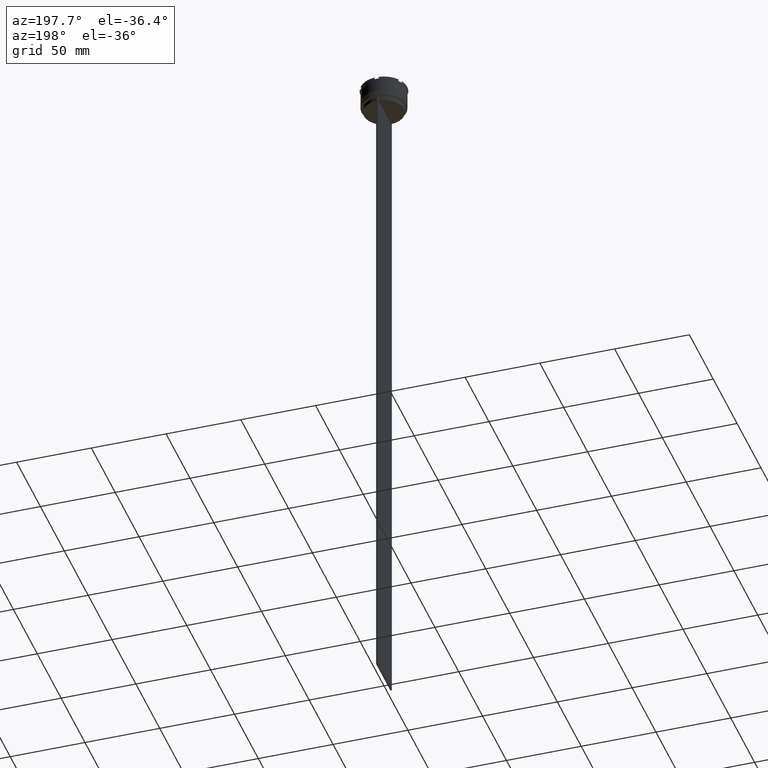
[diagram: clean part render]
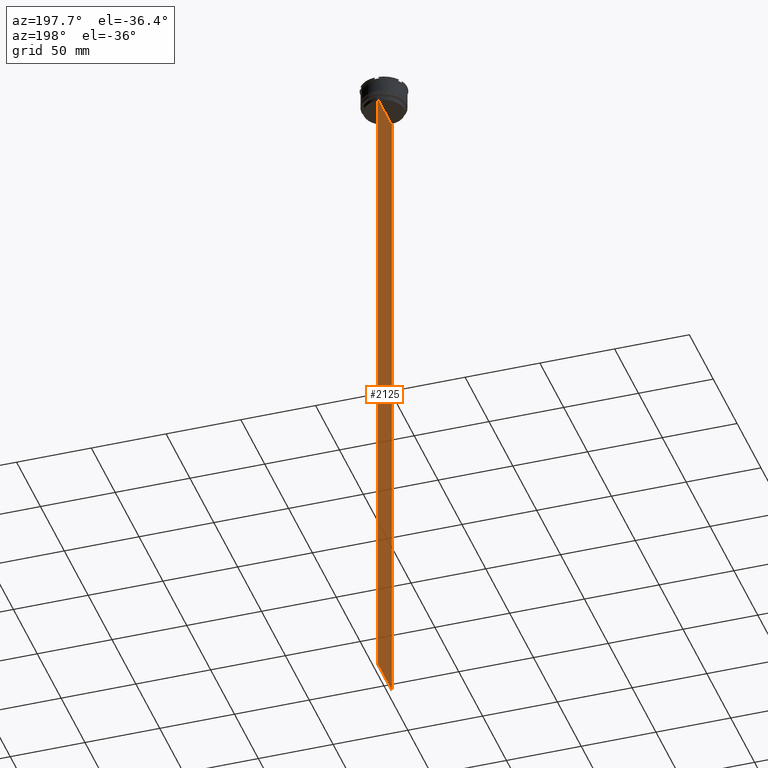
[diagram: same view with one face highlighted and labeled with its STEP entity id]
A machine part, auxiliary view. The second image highlights one B-rep face of the part: STEP entity #2125.
In plain terms, the highlighted planar face has unit normal (-1, 0, 0).
Its self-contained STEP definition (entity closure, byte-faithful):
#2 = ORIENTED_EDGE ( 'NONE', *, *, #2164, .F. ) ;
#16 = VERTEX_POINT ( 'NONE', #1239 ) ;
#21 = CARTESIAN_POINT ( 'NONE',  ( -0.4999999999999998890, -13.39066839257847263, -14.49999999999999822 ) ) ;
#45 = EDGE_LOOP ( 'NONE', ( #1220, #199, #1653, #1455, #1442, #2108, #936, #1438, #2, #969, #361, #882 ) ) ;
#112 = EDGE_CURVE ( 'NONE', #179, #1264, #1501, .T. ) ;
#164 = CARTESIAN_POINT ( 'NONE',  ( -0.4999999999999998890, -13.72422766745777345, -14.16666868242426958 ) ) ;
#179 = VERTEX_POINT ( 'NONE', #2273 ) ;
#197 = CARTESIAN_POINT ( 'NONE',  ( -0.4999999999999998890, 14.99999999999999645, -14.00000000000000178 ) ) ;
#199 = ORIENTED_EDGE ( 'NONE', *, *, #112, .F. ) ;
#213 = CARTESIAN_POINT ( 'NONE',  ( -0.4999999999999998890, -15.00000000000000355, -14.00000000000000178 ) ) ;
#215 = VECTOR ( 'NONE', #262, 1000.000000000000000 ) ;
#262 = DIRECTION ( 'NONE',  ( 0.000000000000000000, 0.000000000000000000, -1.000000000000000000 ) ) ;
#361 = ORIENTED_EDGE ( 'NONE', *, *, #1645, .F. ) ;
#493 = VERTEX_POINT ( 'NONE', #197 ) ;
#513 = EDGE_CURVE ( 'NONE', #1045, #1824, #1338, .T. ) ;
#565 = DIRECTION ( 'NONE',  ( 0.000000000000000000, -1.000000000000000000, 0.000000000000000000 ) ) ;
#587 = DIRECTION ( 'NONE',  ( 0.000000000000000000, -1.000000000000000000, 0.000000000000000000 ) ) ;
#604 = LINE ( 'NONE', #1287, #2761 ) ;
#649 = LINE ( 'NONE', #1984, #2291 ) ;
#698 = CARTESIAN_POINT ( 'NONE',  ( -0.4999999999999998890, 13.39066839257847263, -14.49999999999999822 ) ) ;
#701 = CARTESIAN_POINT ( 'NONE',  ( -0.4999999999999998890, -14.89160837518903513, -14.00000000000000178 ) ) ;
#707 = VERTEX_POINT ( 'NONE', #2032 ) ;
#727 = DIRECTION ( 'NONE',  ( 0.000000000000000000, -1.000000000000000000, 0.000000000000000000 ) ) ;
#741 = CARTESIAN_POINT ( 'NONE',  ( -0.4999999999999998890, 13.39066839257847263, -14.49999999999999822 ) ) ;
#752 = LINE ( 'NONE', #1441, #1943 ) ;
#799 = DIRECTION ( 'NONE',  ( 0.000000000000000000, 0.000000000000000000, 1.000000000000000000 ) ) ;
#817 = CARTESIAN_POINT ( 'NONE',  ( -0.4999999999999998890, -15.00000000000000355, 16.01666203960726165 ) ) ;
#863 = CARTESIAN_POINT ( 'NONE',  ( -0.4999999999999998890, -15.00000000000000355, 16.01666203960726165 ) ) ;
#882 = ORIENTED_EDGE ( 'NONE', *, *, #2675, .F. ) ;
#913 = AXIS2_PLACEMENT_3D ( 'NONE', #817, #1712, #799 ) ;
#936 = ORIENTED_EDGE ( 'NONE', *, *, #1194, .F. ) ;
#945 = B_SPLINE_CURVE_WITH_KNOTS ( 'NONE', 3,
 ( #2750, #1681, #1668, #698 ),
 .UNSPECIFIED., .F., .F.,
 ( 4, 4 ),
 ( 0.02359665025569773755, 0.02430399458637444096 ),
 .UNSPECIFIED. ) ;
#955 = EDGE_CURVE ( 'NONE', #2797, #1461, #649, .T. ) ;
#969 = ORIENTED_EDGE ( 'NONE', *, *, #1385, .F. ) ;
#1021 = DIRECTION ( 'NONE',  ( 0.000000000000000000, -1.000000000000000000, 0.000000000000000000 ) ) ;
#1045 = VERTEX_POINT ( 'NONE', #1356 ) ;
#1144 = CARTESIAN_POINT ( 'NONE',  ( -0.4999999999999998890, 13.39066839257847263, 0.000000000000000000 ) ) ;
#1157 = CARTESIAN_POINT ( 'NONE',  ( -0.4999999999999998890, 13.89100428334828230, -14.00000000000000178 ) ) ;
#1194 = EDGE_CURVE ( 'NONE', #1824, #707, #1818, .T. ) ;
#1218 = LINE ( 'NONE', #1639, #215 ) ;
#1220 = ORIENTED_EDGE ( 'NONE', *, *, #1585, .F. ) ;
#1227 = VECTOR ( 'NONE', #1021, 1000.000000000000000 ) ;
#1239 = CARTESIAN_POINT ( 'NONE',  ( -0.4999999999999998890, -13.39066839257847086, -17.00000000000000000 ) ) ;
#1264 = VERTEX_POINT ( 'NONE', #1157 ) ;
#1287 = CARTESIAN_POINT ( 'NONE',  ( -0.4999999999999998890, -13.39066839257847263, 0.000000000000000000 ) ) ;
#1338 = LINE ( 'NONE', #213, #1514 ) ;
#1356 = CARTESIAN_POINT ( 'NONE',  ( -0.4999999999999998890, -13.89100428334828230, -14.00000000000000178 ) ) ;
#1385 = EDGE_CURVE ( 'NONE', #16, #1446, #604, .T. ) ;
#1438 = ORIENTED_EDGE ( 'NONE', *, *, #513, .F. ) ;
#1441 = CARTESIAN_POINT ( 'NONE',  ( -0.4999999999999998890, -15.00000000000000355, -14.00000000000000178 ) ) ;
#1442 = ORIENTED_EDGE ( 'NONE', *, *, #955, .F. ) ;
#1446 = VERTEX_POINT ( 'NONE', #21 ) ;
#1455 = ORIENTED_EDGE ( 'NONE', *, *, #1620, .T. ) ;
#1461 = VERTEX_POINT ( 'NONE', #1998 ) ;
#1492 = FACE_OUTER_BOUND ( 'NONE', #45, .T. ) ;
#1498 = LINE ( 'NONE', #863, #1522 ) ;
#1501 = LINE ( 'NONE', #2602, #1227 ) ;
#1514 = VECTOR ( 'NONE', #2639, 1000.000000000000000 ) ;
#1522 = VECTOR ( 'NONE', #1716, 1000.000000000000000 ) ;
#1529 = VECTOR ( 'NONE', #1604, 1000.000000000000000 ) ;
#1585 = EDGE_CURVE ( 'NONE', #1264, #2831, #945, .T. ) ;
#1588 = LINE ( 'NONE', #2524, #1793 ) ;
#1604 = DIRECTION ( 'NONE',  ( 0.000000000000000000, 0.000000000000000000, -1.000000000000000000 ) ) ;
#1620 = EDGE_CURVE ( 'NONE', #493, #1461, #1218, .T. ) ;
#1639 = CARTESIAN_POINT ( 'NONE',  ( -0.4999999999999998890, 14.99999999999999645, 16.01666203960726165 ) ) ;
#1645 = EDGE_CURVE ( 'NONE', #2686, #16, #1588, .T. ) ;
#1653 = ORIENTED_EDGE ( 'NONE', *, *, #2729, .F. ) ;
#1668 = CARTESIAN_POINT ( 'NONE',  ( -0.4999999999999998890, 13.55744911232272543, -14.33333542444994002 ) ) ;
#1681 = CARTESIAN_POINT ( 'NONE',  ( -0.4999999999999998890, 13.72422766736833566, -14.16666868251365052 ) ) ;
#1712 = DIRECTION ( 'NONE',  ( -1.000000000000000000, 0.000000000000000000, 0.000000000000000000 ) ) ;
#1716 = DIRECTION ( 'NONE',  ( 0.000000000000000000, 0.000000000000000000, -1.000000000000000000 ) ) ;
#1737 = EDGE_CURVE ( 'NONE', #707, #2797, #1498, .T. ) ;
#1793 = VECTOR ( 'NONE', #565, 1000.000000000000000 ) ;
#1797 = CARTESIAN_POINT ( 'NONE',  ( -0.4999999999999998890, -13.89100428334828230, -14.00000000000000178 ) ) ;
#1818 = LINE ( 'NONE', #2505, #2756 ) ;
#1824 = VERTEX_POINT ( 'NONE', #701 ) ;
#1907 = DIRECTION ( 'NONE',  ( -0.000000000000000000, -0.000000000000000000, 1.000000000000000000 ) ) ;
#1927 = CARTESIAN_POINT ( 'NONE',  ( -0.4999999999999998890, -13.39066839257847263, -14.49999999999999822 ) ) ;
#1943 = VECTOR ( 'NONE', #587, 1000.000000000000000 ) ;
#1984 = CARTESIAN_POINT ( 'NONE',  ( -0.4999999999999998890, -15.00000000000000355, -464.0000000000000000 ) ) ;
#1998 = CARTESIAN_POINT ( 'NONE',  ( -0.4999999999999998890, 14.99999999999999645, -464.0000000000000000 ) ) ;
#2032 = CARTESIAN_POINT ( 'NONE',  ( -0.4999999999999998890, -15.00000000000000355, -14.00000000000000178 ) ) ;
#2041 = LINE ( 'NONE', #1144, #1529 ) ;
#2108 = ORIENTED_EDGE ( 'NONE', *, *, #1737, .F. ) ;
#2125 = ADVANCED_FACE ( 'NONE', ( #1492 ), #2576, .T. ) ;
#2153 = CARTESIAN_POINT ( 'NONE',  ( -0.4999999999999998890, -13.55744911241550277, -14.33333542435722485 ) ) ;
#2164 = EDGE_CURVE ( 'NONE', #1446, #1045, #2457, .T. ) ;
#2273 = CARTESIAN_POINT ( 'NONE',  ( -0.4999999999999998890, 14.89160837518903513, -14.00000000000000178 ) ) ;
#2291 = VECTOR ( 'NONE', #2871, 1000.000000000000000 ) ;
#2457 = B_SPLINE_CURVE_WITH_KNOTS ( 'NONE', 3,
 ( #1927, #2153, #164, #1797 ),
 .UNSPECIFIED., .F., .F.,
 ( 4, 4 ),
 ( 0.06160226316123729867, 0.06231007364084071437 ),
 .UNSPECIFIED. ) ;
#2461 = CARTESIAN_POINT ( 'NONE',  ( -0.4999999999999998890, 13.39066839257847086, -17.00000000000000000 ) ) ;
#2505 = CARTESIAN_POINT ( 'NONE',  ( -0.4999999999999998890, -15.00000000000000355, -14.00000000000000178 ) ) ;
#2524 = CARTESIAN_POINT ( 'NONE',  ( -0.4999999999999998890, 13.40000000000000391, -17.00000000000000000 ) ) ;
#2576 = PLANE ( 'NONE',  #913 ) ;
#2602 = CARTESIAN_POINT ( 'NONE',  ( -0.4999999999999998890, -15.00000000000000355, -14.00000000000000178 ) ) ;
#2639 = DIRECTION ( 'NONE',  ( 0.000000000000000000, -1.000000000000000000, 0.000000000000000000 ) ) ;
#2675 = EDGE_CURVE ( 'NONE', #2831, #2686, #2041, .T. ) ;
#2686 = VERTEX_POINT ( 'NONE', #2461 ) ;
#2729 = EDGE_CURVE ( 'NONE', #493, #179, #752, .T. ) ;
#2750 = CARTESIAN_POINT ( 'NONE',  ( -0.4999999999999998890, 13.89100428334828230, -14.00000000000000178 ) ) ;
#2756 = VECTOR ( 'NONE', #727, 1000.000000000000000 ) ;
#2761 = VECTOR ( 'NONE', #1907, 1000.000000000000000 ) ;
#2788 = CARTESIAN_POINT ( 'NONE',  ( -0.4999999999999998890, -15.00000000000000355, -464.0000000000000000 ) ) ;
#2797 = VERTEX_POINT ( 'NONE', #2788 ) ;
#2831 = VERTEX_POINT ( 'NONE', #741 ) ;
#2871 = DIRECTION ( 'NONE',  ( 0.000000000000000000, 1.000000000000000000, 0.000000000000000000 ) ) ;